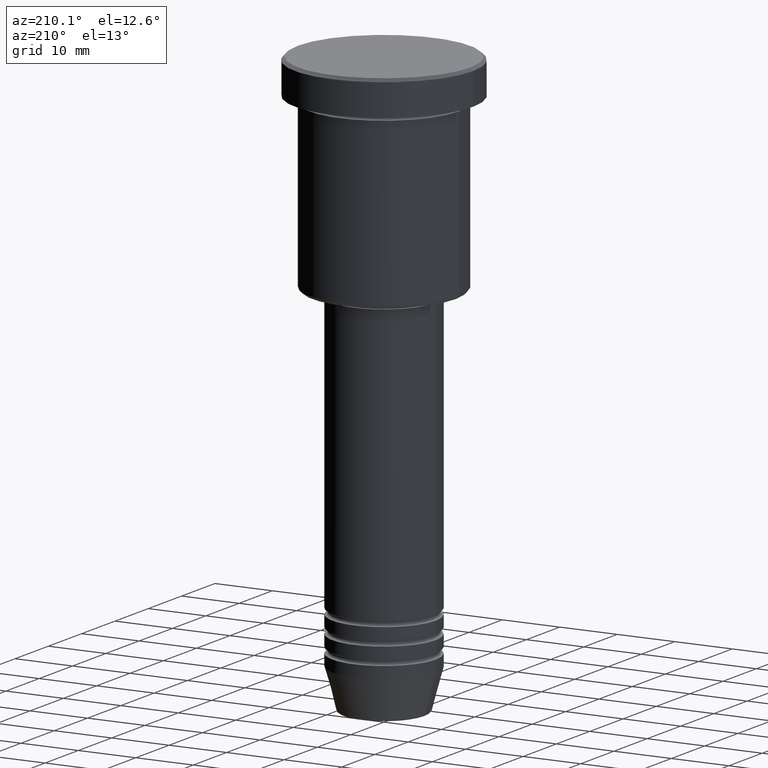
[diagram: clean part render]
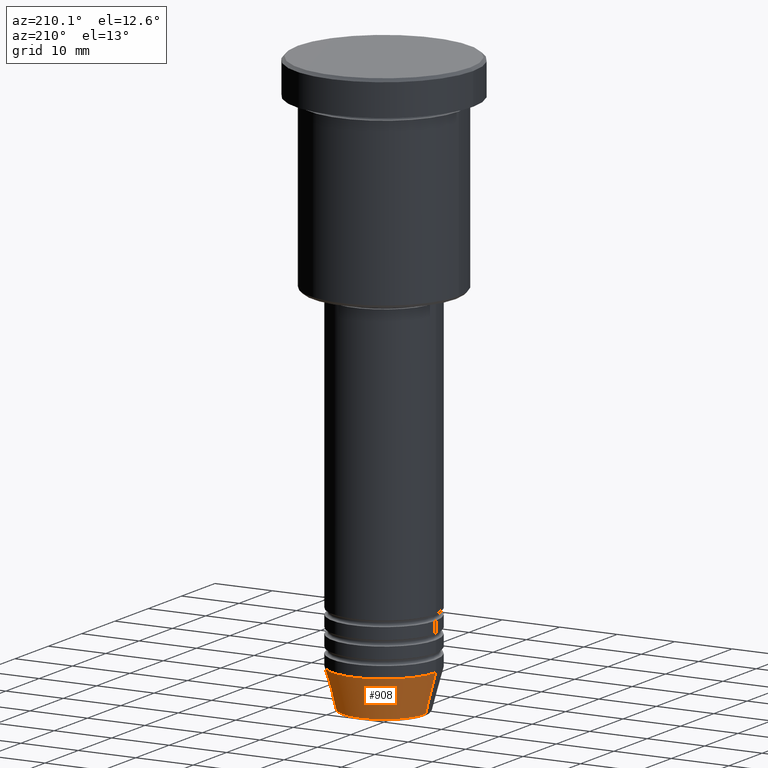
[diagram: same view with one face highlighted and labeled with its STEP entity id]
A machine part, auxiliary view. The second image highlights one B-rep face of the part: STEP entity #908.
In plain terms, the highlighted conical surface has half-angle 15 deg.
Its self-contained STEP definition (entity closure, byte-faithful):
#22 = AXIS2_PLACEMENT_3D ( 'NONE', #810, #150, #64 ) ;
#36 = DIRECTION ( 'NONE',  ( -0.000000000000000000, -0.000000000000000000, 1.000000000000000000 ) ) ;
#42 = CARTESIAN_POINT ( 'NONE',  ( 7.223655072137188604, 0.000000000000000000, -100.6294095225512706 ) ) ;
#49 = CARTESIAN_POINT ( 'NONE',  ( -7.223655072137189492, 9.934123627281765110E-16, -100.6294095225512706 ) ) ;
#64 = DIRECTION ( 'NONE',  ( 1.000000000000000000, 0.000000000000000000, 0.000000000000000000 ) ) ;
#120 = CARTESIAN_POINT ( 'NONE',  ( 0.000000000000000000, 0.000000000000000000, -94.00000000000000000 ) ) ;
#146 = CARTESIAN_POINT ( 'NONE',  ( -9.000000000000000000, 1.102182119232617714E-15, -94.00000000000000000 ) ) ;
#150 = DIRECTION ( 'NONE',  ( -0.000000000000000000, -0.000000000000000000, 1.000000000000000000 ) ) ;
#184 = AXIS2_PLACEMENT_3D ( 'NONE', #120, #36, #401 ) ;
#205 = CARTESIAN_POINT ( 'NONE',  ( -9.000000000000000000, 1.102182119232617714E-15, -94.00000000000000000 ) ) ;
#278 = VERTEX_POINT ( 'NONE', #205 ) ;
#298 = CARTESIAN_POINT ( 'NONE',  ( 9.000000000000000000, 0.000000000000000000, -94.00000000000000000 ) ) ;
#317 = VERTEX_POINT ( 'NONE', #49 ) ;
#343 = VECTOR ( 'NONE', #611, 1000.000000000000000 ) ;
#351 = ORIENTED_EDGE ( 'NONE', *, *, #797, .F. ) ;
#401 = DIRECTION ( 'NONE',  ( 1.000000000000000000, 0.000000000000000000, 0.000000000000000000 ) ) ;
#410 = EDGE_CURVE ( 'NONE', #317, #278, #628, .T. ) ;
#496 = ORIENTED_EDGE ( 'NONE', *, *, #737, .F. ) ;
#506 = DIRECTION ( 'NONE',  ( -0.000000000000000000, -0.000000000000000000, 1.000000000000000000 ) ) ;
#532 = AXIS2_PLACEMENT_3D ( 'NONE', #971, #506, #896 ) ;
#611 = DIRECTION ( 'NONE',  ( -0.2588190451025213501, 3.169619151431772337E-17, 0.9659258262890680902 ) ) ;
#628 = LINE ( 'NONE', #146, #343 ) ;
#645 = CARTESIAN_POINT ( 'NONE',  ( 9.000000000000000000, 0.000000000000000000, -94.00000000000000000 ) ) ;
#698 = CONICAL_SURFACE ( 'NONE', #532, 9.000000000000000000, 0.2617993877991500740 ) ;
#725 = VERTEX_POINT ( 'NONE', #42 ) ;
#737 = EDGE_CURVE ( 'NONE', #725, #1090, #845, .T. ) ;
#778 = ORIENTED_EDGE ( 'NONE', *, *, #410, .T. ) ;
#797 = EDGE_CURVE ( 'NONE', #1090, #278, #968, .T. ) ;
#810 = CARTESIAN_POINT ( 'NONE',  ( 0.000000000000000000, 0.000000000000000000, -100.6294095225512706 ) ) ;
#829 = VECTOR ( 'NONE', #1047, 1000.000000000000000 ) ;
#845 = LINE ( 'NONE', #298, #829 ) ;
#896 = DIRECTION ( 'NONE',  ( 1.000000000000000000, 0.000000000000000000, 0.000000000000000000 ) ) ;
#900 = EDGE_CURVE ( 'NONE', #725, #317, #1022, .T. ) ;
#908 = ADVANCED_FACE ( 'NONE', ( #1148 ), #698, .T. ) ;
#916 = ORIENTED_EDGE ( 'NONE', *, *, #900, .T. ) ;
#968 = CIRCLE ( 'NONE', #184, 9.000000000000000000 ) ;
#971 = CARTESIAN_POINT ( 'NONE',  ( 0.000000000000000000, 0.000000000000000000, -94.00000000000000000 ) ) ;
#1022 = CIRCLE ( 'NONE', #22, 7.223655072137188604 ) ;
#1047 = DIRECTION ( 'NONE',  ( 0.2588190451025213501, 0.000000000000000000, 0.9659258262890680902 ) ) ;
#1090 = VERTEX_POINT ( 'NONE', #645 ) ;
#1102 = EDGE_LOOP ( 'NONE', ( #916, #778, #351, #496 ) ) ;
#1148 = FACE_OUTER_BOUND ( 'NONE', #1102, .T. ) ;